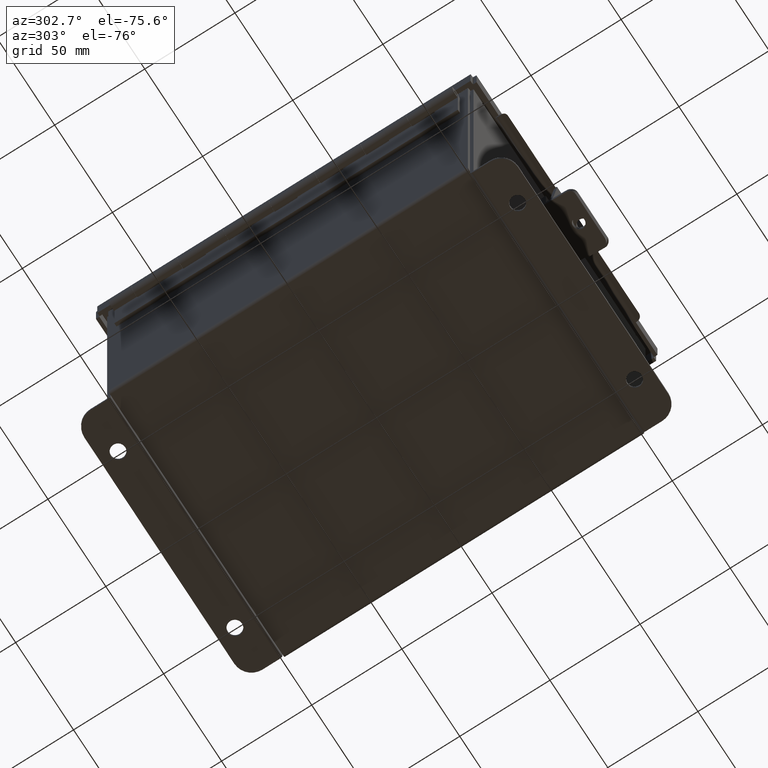
[diagram: clean part render]
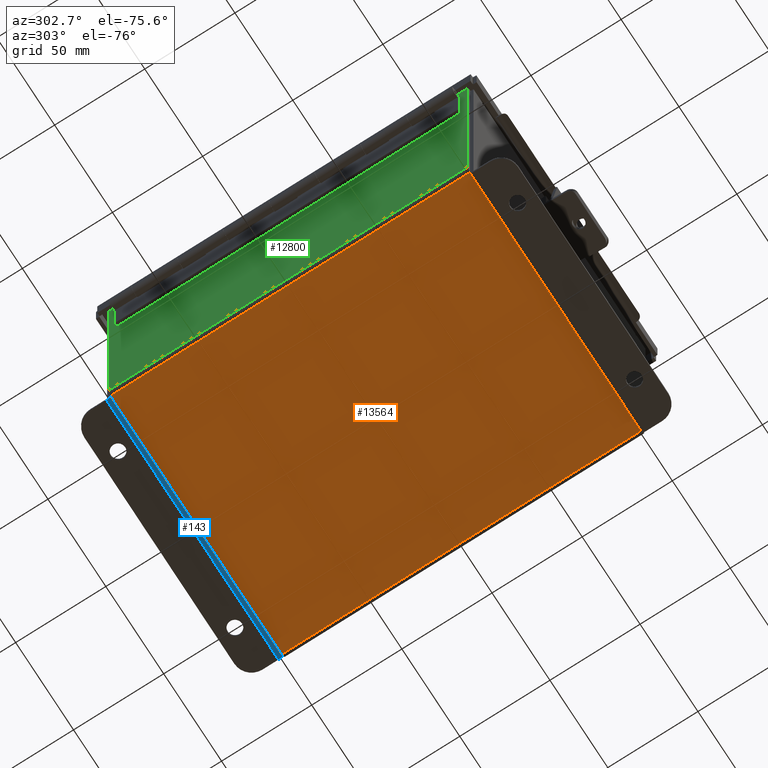
[diagram: same view with three faces highlighted in distinct colors, each labeled with its STEP entity id]
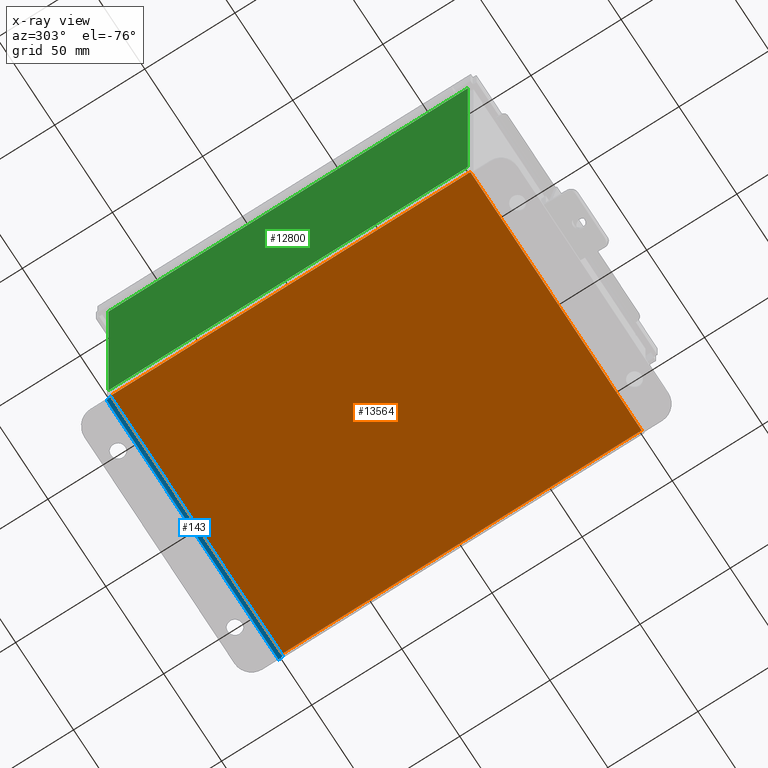
[diagram: x-ray of the same camera — body ghosted, the three highlighted faces saturated]
A machine part, auxiliary view with three faces highlighted in distinct colors.
The next image is the same camera in x-ray (body ghosted, the three faces saturated) — at least one of them is partly hidden behind the body in this view.
Their STEP definitions:

[orange] entity #13564 — the highlighted planar face has unit normal (0, 0, -1).
#16 = ORIENTED_EDGE ( 'NONE', *, *, #5808, .F. ) ;
#149 = VERTEX_POINT ( 'NONE', #2760 ) ;
#769 = DIRECTION ( 'NONE',  ( -1.000000000000000000, 0.0000000000000000000, -0.0000000000000000000 ) ) ;
#1441 = DIRECTION ( 'NONE',  ( -0.0000000000000000000, 1.000000000000000000, 8.208677865577646300E-017 ) ) ;
#1508 = EDGE_CURVE ( 'NONE', #7590, #149, #13241, .T. ) ;
#2545 = EDGE_LOOP ( 'NONE', ( #7560, #9649, #16, #3499 ) ) ;
#2760 = CARTESIAN_POINT ( 'NONE',  ( 2.912300000000000600, -3.925299999999998700, -0.07469999999999998900 ) ) ;
#3106 = CARTESIAN_POINT ( 'NONE',  ( 0.0000000000000000000, 0.0000000000000000000, -0.07470000000000000300 ) ) ;
#3310 = CARTESIAN_POINT ( 'NONE',  ( 2.912300000000000600, 3.925300000000000500, -0.07469999999999935000 ) ) ;
#3499 = ORIENTED_EDGE ( 'NONE', *, *, #9421, .T. ) ;
#3864 = VERTEX_POINT ( 'NONE', #10341 ) ;
#4625 = VECTOR ( 'NONE', #1441, 39.37007874015748100 ) ;
#4762 = LINE ( 'NONE', #7088, #11081 ) ;
#4895 = DIRECTION ( 'NONE',  ( -0.0000000000000000000, -1.000000000000000000, -8.208677865577646300E-017 ) ) ;
#5164 = LINE ( 'NONE', #11271, #5949 ) ;
#5808 = EDGE_CURVE ( 'NONE', #7722, #149, #4762, .T. ) ;
#5949 = VECTOR ( 'NONE', #12463, 39.37007874015748100 ) ;
#6399 = CARTESIAN_POINT ( 'NONE',  ( -2.912299999999999200, -3.925299999999999100, -0.07470000000000054400 ) ) ;
#6567 = VECTOR ( 'NONE', #4895, 39.37007874015748100 ) ;
#6674 = PLANE ( 'NONE',  #14705 ) ;
#6858 = FACE_OUTER_BOUND ( 'NONE', #2545, .T. ) ;
#7088 = CARTESIAN_POINT ( 'NONE',  ( -2.999999999999999600, -3.925299999999999100, -0.07470000000000000300 ) ) ;
#7560 = ORIENTED_EDGE ( 'NONE', *, *, #13375, .F. ) ;
#7590 = VERTEX_POINT ( 'NONE', #3310 ) ;
#7722 = VERTEX_POINT ( 'NONE', #6399 ) ;
#7872 = DIRECTION ( 'NONE',  ( 0.0000000000000000000, 0.0000000000000000000, -1.000000000000000000 ) ) ;
#9421 = EDGE_CURVE ( 'NONE', #7722, #3864, #14088, .T. ) ;
#9649 = ORIENTED_EDGE ( 'NONE', *, *, #1508, .T. ) ;
#10341 = CARTESIAN_POINT ( 'NONE',  ( -2.912299999999999200, 3.925300000000000500, -0.07470000000000000300 ) ) ;
#11081 = VECTOR ( 'NONE', #13051, 39.37007874015748100 ) ;
#11271 = CARTESIAN_POINT ( 'NONE',  ( -2.999999999999999600, 3.925300000000000500, -0.07470000000000000300 ) ) ;
#11995 = CARTESIAN_POINT ( 'NONE',  ( 2.912300000000000600, 3.925300000000000500, -0.07469999999999935000 ) ) ;
#12176 = CARTESIAN_POINT ( 'NONE',  ( -2.912299999999999200, -3.925299999999999100, -0.07470000000000054400 ) ) ;
#12463 = DIRECTION ( 'NONE',  ( -1.000000000000000000, -0.0000000000000000000, -0.0000000000000000000 ) ) ;
#13051 = DIRECTION ( 'NONE',  ( 1.000000000000000000, 0.0000000000000000000, 0.0000000000000000000 ) ) ;
#13241 = LINE ( 'NONE', #11995, #6567 ) ;
#13375 = EDGE_CURVE ( 'NONE', #7590, #3864, #5164, .T. ) ;
#13564 = ADVANCED_FACE ( 'NONE', ( #6858 ), #6674, .T. ) ;
#14088 = LINE ( 'NONE', #12176, #4625 ) ;
#14705 = AXIS2_PLACEMENT_3D ( 'NONE', #3106, #7872, #769 ) ;

[blue] entity #143 — the highlighted cylindrical surface (edge-blend (fillet) strip) has radius 2.2276 mm, axis along (-1, 0, 0).
#143 = ADVANCED_FACE ( 'NONE', ( #11172 ), #10810, .T. ) ;
#372 = EDGE_CURVE ( 'NONE', #1628, #13208, #6157, .T. ) ;
#940 = AXIS2_PLACEMENT_3D ( 'NONE', #15158, #8085, #976 ) ;
#976 = DIRECTION ( 'NONE',  ( 0.0000000000000000000, 0.0000000000000000000, 1.000000000000000000 ) ) ;
#1263 = CARTESIAN_POINT ( 'NONE',  ( -2.925299999999999600, -0.07470000000000015500, -3.099299999999999900 ) ) ;
#1377 = CARTESIAN_POINT ( 'NONE',  ( -2.925299999999999100, 0.01300000000000065300, -3.187000000000000300 ) ) ;
#1628 = VERTEX_POINT ( 'NONE', #1377 ) ;
#2706 = DIRECTION ( 'NONE',  ( -1.000000000000000000, 0.0000000000000000000, 0.0000000000000000000 ) ) ;
#2944 = CARTESIAN_POINT ( 'NONE',  ( 2.925300000000000500, 0.01299999999999956100, -3.187000000000000300 ) ) ;
#3330 = ORIENTED_EDGE ( 'NONE', *, *, #372, .F. ) ;
#4247 = VERTEX_POINT ( 'NONE', #8149 ) ;
#4979 = CIRCLE ( 'NONE', #940, 0.08770000000000026400 ) ;
#5384 = VERTEX_POINT ( 'NONE', #2944 ) ;
#5394 = LINE ( 'NONE', #5528, #11329 ) ;
#5528 = CARTESIAN_POINT ( 'NONE',  ( 2.925300000000000500, 0.01300000000000065300, -3.187000000000000300 ) ) ;
#6157 = CIRCLE ( 'NONE', #11487, 0.08770000000000026400 ) ;
#6189 = VECTOR ( 'NONE', #9565, 39.37007874015748100 ) ;
#6644 = CARTESIAN_POINT ( 'NONE',  ( -2.925299999999999100, 0.01300000000000010700, -3.099299999999999900 ) ) ;
#7845 = DIRECTION ( 'NONE',  ( 0.0000000000000000000, 0.0000000000000000000, 1.000000000000000000 ) ) ;
#8085 = DIRECTION ( 'NONE',  ( 1.000000000000000000, -0.0000000000000000000, -0.0000000000000000000 ) ) ;
#8149 = CARTESIAN_POINT ( 'NONE',  ( 2.925300000000000500, -0.07470000000000015500, -3.099299999999999900 ) ) ;
#8383 = ORIENTED_EDGE ( 'NONE', *, *, #13638, .F. ) ;
#8824 = EDGE_CURVE ( 'NONE', #1628, #5384, #5394, .T. ) ;
#9565 = DIRECTION ( 'NONE',  ( 1.000000000000000000, -0.0000000000000000000, -0.0000000000000000000 ) ) ;
#10810 = CYLINDRICAL_SURFACE ( 'NONE', #14164, 0.08770000000000026400 ) ;
#11172 = FACE_OUTER_BOUND ( 'NONE', #14993, .T. ) ;
#11329 = VECTOR ( 'NONE', #13748, 39.37007874015748100 ) ;
#11487 = AXIS2_PLACEMENT_3D ( 'NONE', #6644, #14916, #7845 ) ;
#12186 = CARTESIAN_POINT ( 'NONE',  ( -2.925299999999999600, 0.01300000000000010700, -3.099299999999999900 ) ) ;
#13059 = EDGE_CURVE ( 'NONE', #13208, #4247, #15265, .T. ) ;
#13153 = ORIENTED_EDGE ( 'NONE', *, *, #13059, .F. ) ;
#13208 = VERTEX_POINT ( 'NONE', #14517 ) ;
#13299 = ORIENTED_EDGE ( 'NONE', *, *, #8824, .T. ) ;
#13376 = DIRECTION ( 'NONE',  ( 0.0000000000000000000, -3.699053013085864000E-015, -1.000000000000000000 ) ) ;
#13638 = EDGE_CURVE ( 'NONE', #4247, #5384, #4979, .T. ) ;
#13748 = DIRECTION ( 'NONE',  ( 1.000000000000000000, -0.0000000000000000000, -0.0000000000000000000 ) ) ;
#14164 = AXIS2_PLACEMENT_3D ( 'NONE', #12186, #2706, #13376 ) ;
#14517 = CARTESIAN_POINT ( 'NONE',  ( -2.925299999999999100, -0.07470000000000015500, -3.099299999999999900 ) ) ;
#14916 = DIRECTION ( 'NONE',  ( -1.000000000000000000, 0.0000000000000000000, 0.0000000000000000000 ) ) ;
#14993 = EDGE_LOOP ( 'NONE', ( #13153, #3330, #13299, #8383 ) ) ;
#15158 = CARTESIAN_POINT ( 'NONE',  ( 2.925300000000000500, 0.01300000000000010700, -3.099299999999999900 ) ) ;
#15265 = LINE ( 'NONE', #1263, #6189 ) ;

[green] entity #12800 — the highlighted planar face has unit normal (1, 0, 0).
#75 = FACE_OUTER_BOUND ( 'NONE', #14391, .T. ) ;
#166 = CARTESIAN_POINT ( 'NONE',  ( -3.000000000000020000, 3.925300000000000500, 5.837600000000000100 ) ) ;
#760 = ORIENTED_EDGE ( 'NONE', *, *, #12531, .F. ) ;
#1118 = DIRECTION ( 'NONE',  ( -3.455316574900958600E-015, 1.867738689135653700E-016, 1.000000000000000000 ) ) ;
#1428 = DIRECTION ( 'NONE',  ( -2.404758783435166500E-031, 1.000000000000000000, 6.959590333641412800E-017 ) ) ;
#2812 = VECTOR ( 'NONE', #7905, 39.37007874015748100 ) ;
#3162 = DIRECTION ( 'NONE',  ( 1.000000000000000000, 0.0000000000000000000, 3.455316574900958600E-015 ) ) ;
#3210 = CARTESIAN_POINT ( 'NONE',  ( -2.999999999999999600, 3.925300000000000500, -1.062859610035002400E-014 ) ) ;
#3782 = LINE ( 'NONE', #14489, #10481 ) ;
#4361 = VERTEX_POINT ( 'NONE', #7148 ) ;
#4801 = VERTEX_POINT ( 'NONE', #6639 ) ;
#5444 = CARTESIAN_POINT ( 'NONE',  ( -2.999999999999999600, 0.0000000000000000000, -1.062859610035002400E-014 ) ) ;
#5805 = AXIS2_PLACEMENT_3D ( 'NONE', #5444, #3162, #11444 ) ;
#5848 = CARTESIAN_POINT ( 'NONE',  ( -2.999999999999999600, -3.925299999999999100, -9.894411952052753600E-015 ) ) ;
#6455 = ORIENTED_EDGE ( 'NONE', *, *, #11044, .T. ) ;
#6639 = CARTESIAN_POINT ( 'NONE',  ( -2.999999999999999600, -3.925299999999999100, 0.01299999999999929700 ) ) ;
#7002 = VERTEX_POINT ( 'NONE', #15339 ) ;
#7148 = CARTESIAN_POINT ( 'NONE',  ( -3.000000000000018700, -3.925299999999998200, 5.837600000000000100 ) ) ;
#7905 = DIRECTION ( 'NONE',  ( 3.455316574900958600E-015, 0.0000000000000000000, -1.000000000000000000 ) ) ;
#7922 = EDGE_CURVE ( 'NONE', #14448, #7002, #12275, .T. ) ;
#8036 = ORIENTED_EDGE ( 'NONE', *, *, #13408, .T. ) ;
#8991 = CARTESIAN_POINT ( 'NONE',  ( -3.000000000000018700, -3.925299999999998200, 5.837600000000000100 ) ) ;
#10481 = VECTOR ( 'NONE', #1428, 39.37007874015748100 ) ;
#11044 = EDGE_CURVE ( 'NONE', #4801, #4361, #14365, .T. ) ;
#11231 = VECTOR ( 'NONE', #1118, 39.37007874015748100 ) ;
#11444 = DIRECTION ( 'NONE',  ( 3.455316574900958600E-015, 0.0000000000000000000, -1.000000000000000000 ) ) ;
#11873 = LINE ( 'NONE', #8991, #12609 ) ;
#12275 = LINE ( 'NONE', #3210, #2812 ) ;
#12531 = EDGE_CURVE ( 'NONE', #4801, #7002, #3782, .T. ) ;
#12609 = VECTOR ( 'NONE', #13679, 39.37007874015748100 ) ;
#12800 = ADVANCED_FACE ( 'NONE', ( #75 ), #14895, .F. ) ;
#13408 = EDGE_CURVE ( 'NONE', #4361, #14448, #11873, .T. ) ;
#13679 = DIRECTION ( 'NONE',  ( 0.0000000000000000000, 1.000000000000000000, 0.0000000000000000000 ) ) ;
#14365 = LINE ( 'NONE', #5848, #11231 ) ;
#14391 = EDGE_LOOP ( 'NONE', ( #8036, #14847, #760, #6455 ) ) ;
#14448 = VERTEX_POINT ( 'NONE', #166 ) ;
#14489 = CARTESIAN_POINT ( 'NONE',  ( -2.999999999999999600, 3.925300000000000500, 0.01299999999999984300 ) ) ;
#14847 = ORIENTED_EDGE ( 'NONE', *, *, #7922, .T. ) ;
#14895 = PLANE ( 'NONE',  #5805 ) ;
#15339 = CARTESIAN_POINT ( 'NONE',  ( -2.999999999999999600, 3.925300000000000500, 0.01299999999999989400 ) ) ;